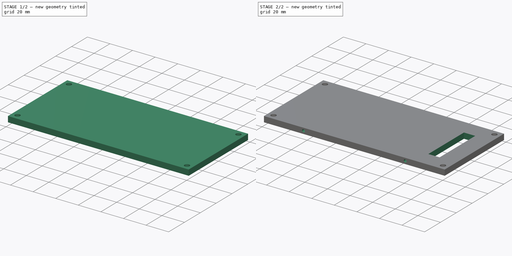
[diagram: build sequence overview — one tinted view per stage of 2, left to right]
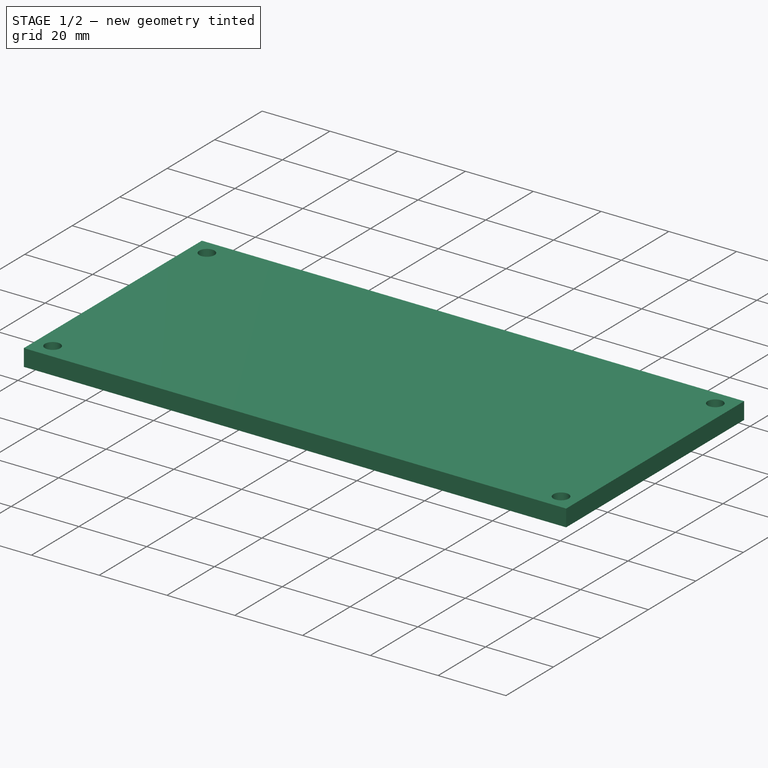
[diagram: stage 1 of 2 — iso view after this stage's code; geometry added in this stage tinted green]
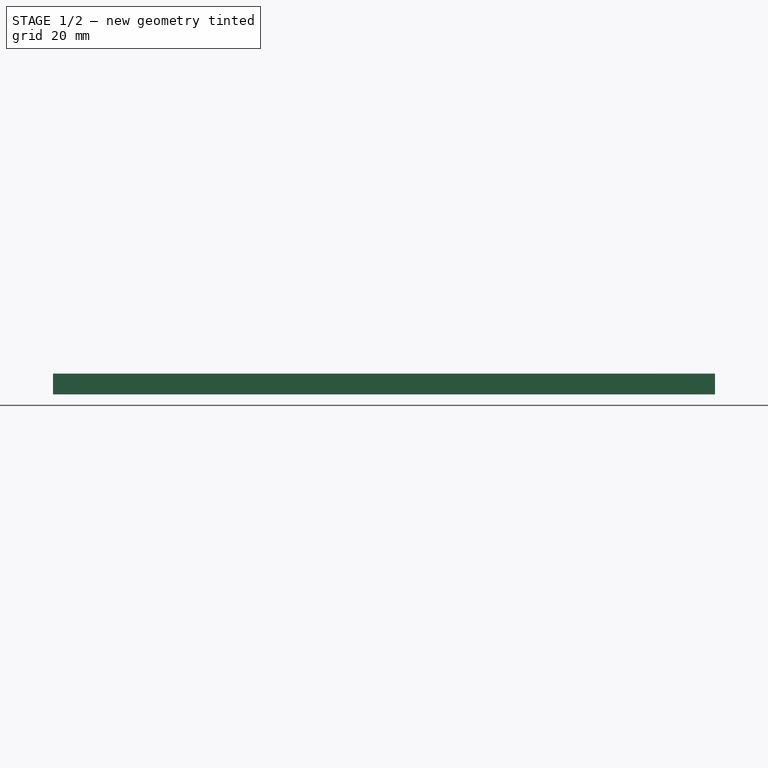
[diagram: stage 1 of 2 — front view after this stage's code; geometry added in this stage tinted green]
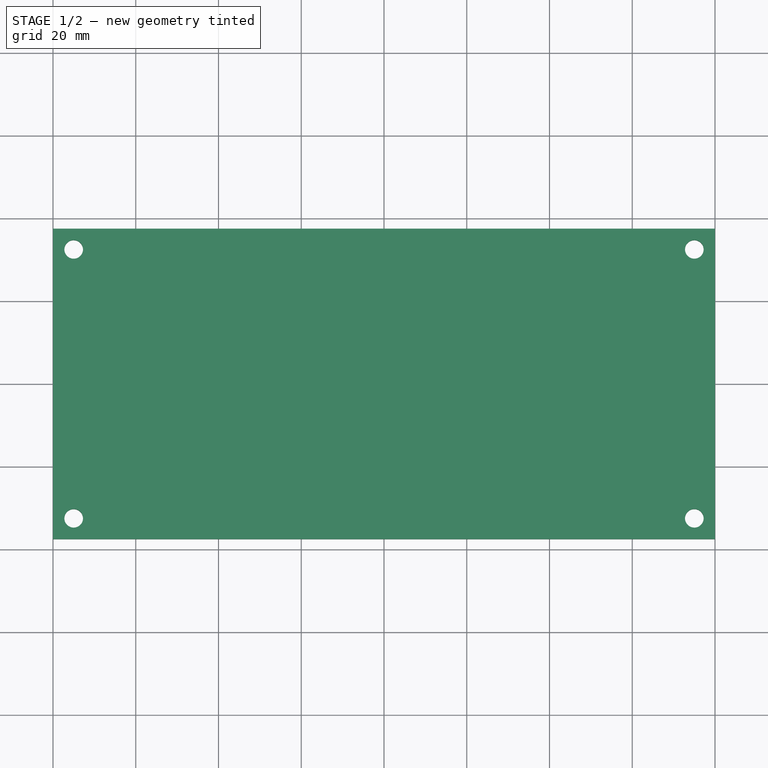
[diagram: stage 1 of 2 — top view after this stage's code; geometry added in this stage tinted green]
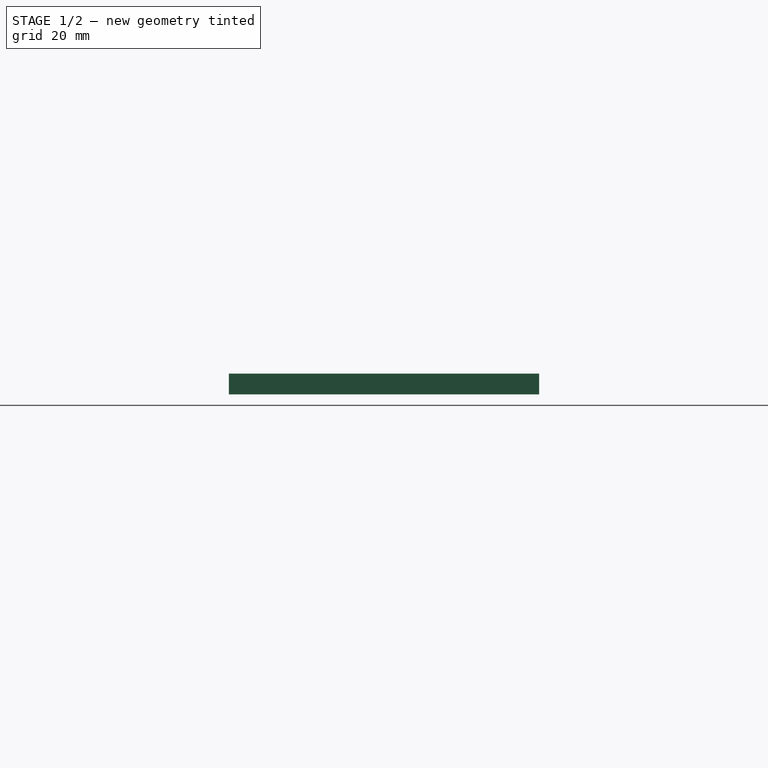
[diagram: stage 1 of 2 — right view after this stage's code; geometry added in this stage tinted green]
FCSTD DOCUMENT  (FreeCAD 0.19R24291 (Git))
Label: middle
License: All rights reserved
LicenseURL: http://en.wikipedia.org/wiki/All_rights_reserved
objects: Sketcher::SketchObject×4, PartDesign::Hole×2, PartDesign::Pad×1, PartDesign::Pocket×1, PartDesign::Body×1
note: 13 computed .brp shape members not serialized (recipe doc carries the construction recipe); baked Part::Feature solids carry a one-line shape summary decoded from their .brp

FEATURE [Sketcher::SketchObject] Sketch
  FullyConstrained = true
  MapMode = 5
  Support = -> [XY_Plane]
  sketch-geometry (4):
    g0: LineSegment StartX=-80 StartY=37.5 StartZ=0 EndX=80 EndY=37.5 EndZ=0
    g1: LineSegment StartX=80 StartY=37.5 StartZ=0 EndX=80 EndY=-37.5 EndZ=0
    g2: LineSegment StartX=80 StartY=-37.5 StartZ=0 EndX=-80 EndY=-37.5 EndZ=0
    g3: LineSegment StartX=-80 StartY=-37.5 StartZ=0 EndX=-80 EndY=37.5 EndZ=0
  constraints (10):
    c: Coincident(g0,g1)
    c: Coincident(g1,g2)
    c: Coincident(g2,g3)
    c: Coincident(g3,g0)
    c: Horizontal(g2)
    c: Vertical(g3)
    c: Symmetric(g0,g0,g-2)
    c: Symmetric(g0,g1,g-1)
    c: DistanceX(g0,g0) = 160
    c: DistanceY(g1,g1) = 75
FEATURE [PartDesign::Pad] Pad
  Direction = (1,1,1)
  Length = 5
  Length2 = 100
  Profile = -> Sketch
  Type = 0
FEATURE [Sketcher::SketchObject] Sketch001
  FullyConstrained = false
  MapMode = 5
  Placement = pos=(0,0,0) rot=(1,0,0;3.14159rad)
  Support = -> [Pad]
  sketch-geometry (8):
    g0: LineSegment StartX=-75 StartY=32.5 StartZ=0 EndX=75 EndY=32.5 EndZ=0
    g1: LineSegment StartX=75 StartY=32.5 StartZ=0 EndX=75 EndY=-32.5 EndZ=0
    g2: LineSegment StartX=75 StartY=-32.5 StartZ=0 EndX=-75 EndY=-32.5 EndZ=0
    g3: LineSegment StartX=-75 StartY=-32.5 StartZ=0 EndX=-75 EndY=32.5 EndZ=0
    g4: Circle CenterX=-75 CenterY=32.5 CenterZ=0 NormalX=0 NormalY=0 NormalZ=1 AngleXU=0 Radius=3.59456
    g5: Circle CenterX=75 CenterY=32.5 CenterZ=0 NormalX=0 NormalY=0 NormalZ=1 AngleXU=0 Radius=3.59456
    g6: Circle CenterX=75 CenterY=-32.5 CenterZ=0 NormalX=0 NormalY=0 NormalZ=1 AngleXU=0 Radius=3.59456
    g7: Circle CenterX=-75 CenterY=-32.5 CenterZ=0 NormalX=0 NormalY=0 NormalZ=1 AngleXU=0 Radius=3.59456
  constraints (17):
    c: Coincident(g0,g1)
    c: Coincident(g1,g2)
    c: Coincident(g2,g3)
    c: Coincident(g3,g0)
    c: Horizontal(g2)
    c: Vertical(g3)
    c: Symmetric(g0,g0,g-2)
    c: Symmetric(g0,g1,g-1)
    c: DistanceX(g0,g0) = 150
    c: DistanceY(g1,g1) = 65
    c: Coincident(g4,g0)
    c: Coincident(g5,g0)
    c: Coincident(g6,g1)
    c: Coincident(g7,g2)
    c: Equal(g7,g6)
    c: Equal(g6,g5)
    c: Equal(g5,g4)
FEATURE [PartDesign::Hole] Hole
  BaseFeature = -> Pad
  Depth = 25
  DepthType = 1
  Diameter = 4.5
  DrillForDepth = false
  DrillPoint = 1
  DrillPointAngle = 118
  HoleCutCountersinkAngle = 90
  HoleCutCustomValues = false
  HoleCutDepth = 0
  HoleCutDiameter = 6.1
  HoleCutType = 0
  ModelActualThread = false
  Profile = -> Sketch001
  Tapered = false
  TaperedAngle = 90
  ThreadAngle = 60
  ThreadClass = 0
  ThreadCutOffInner = 0.0757772
  ThreadCutOffOuter = 0.151554
  ThreadDirection = 0
  ThreadFit = 0
  ThreadPitch = 0.7
  ThreadSize = 11
  ThreadType = 1
  Threaded = false
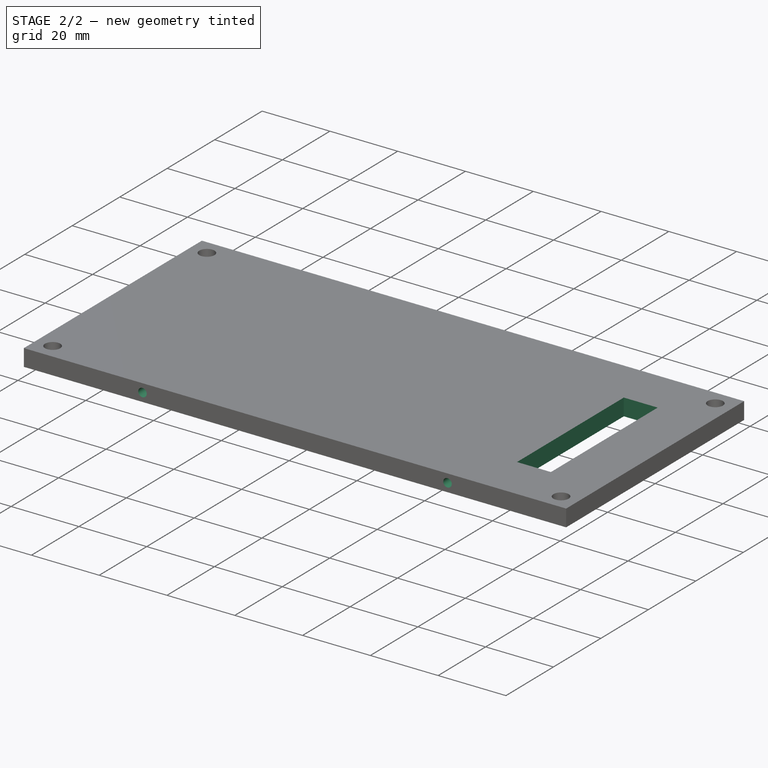
[diagram: stage 2 of 2 — iso view after this stage's code; geometry added in this stage tinted green]
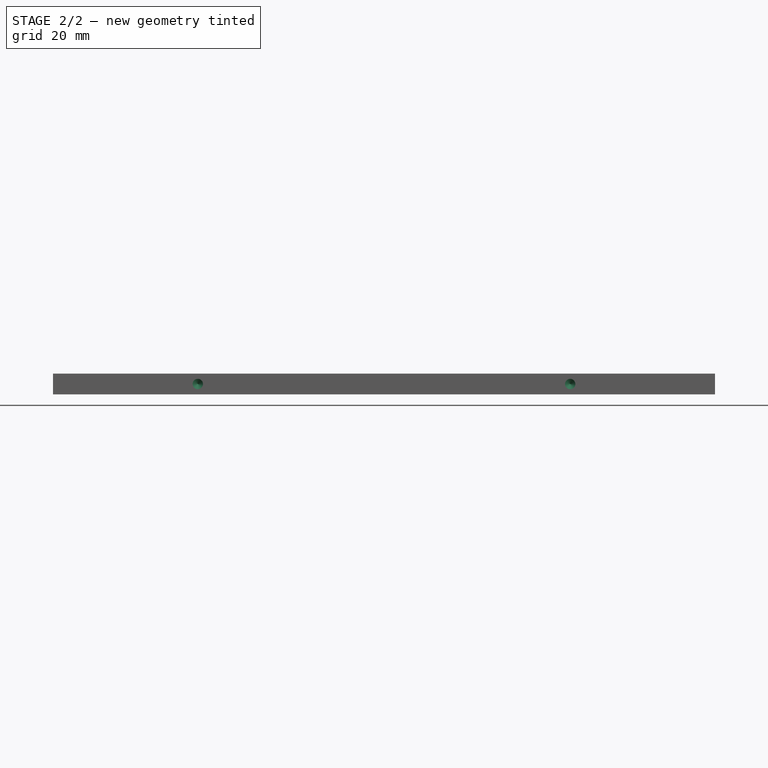
[diagram: stage 2 of 2 — front view after this stage's code; geometry added in this stage tinted green]
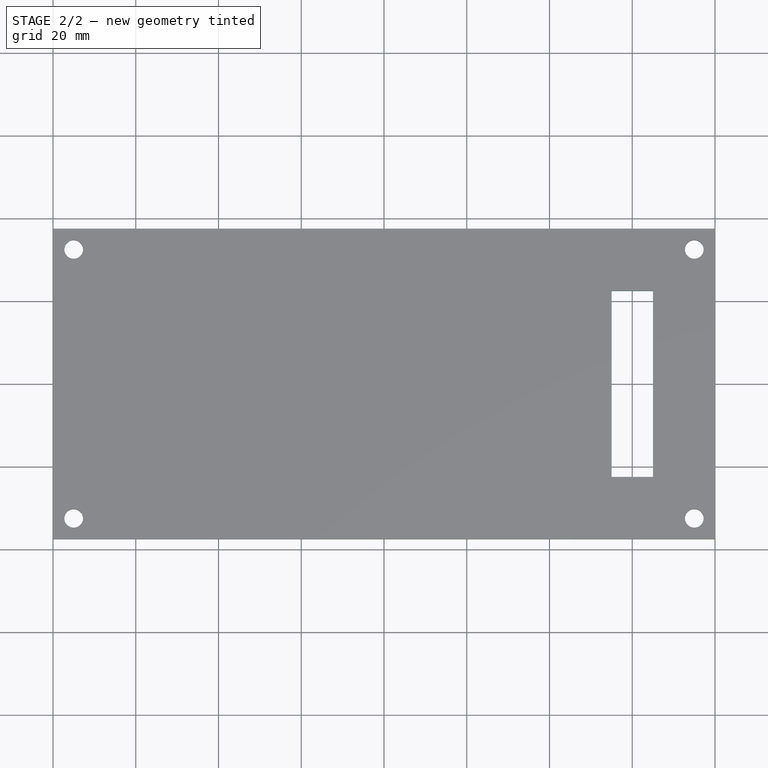
[diagram: stage 2 of 2 — top view after this stage's code; geometry added in this stage tinted green]
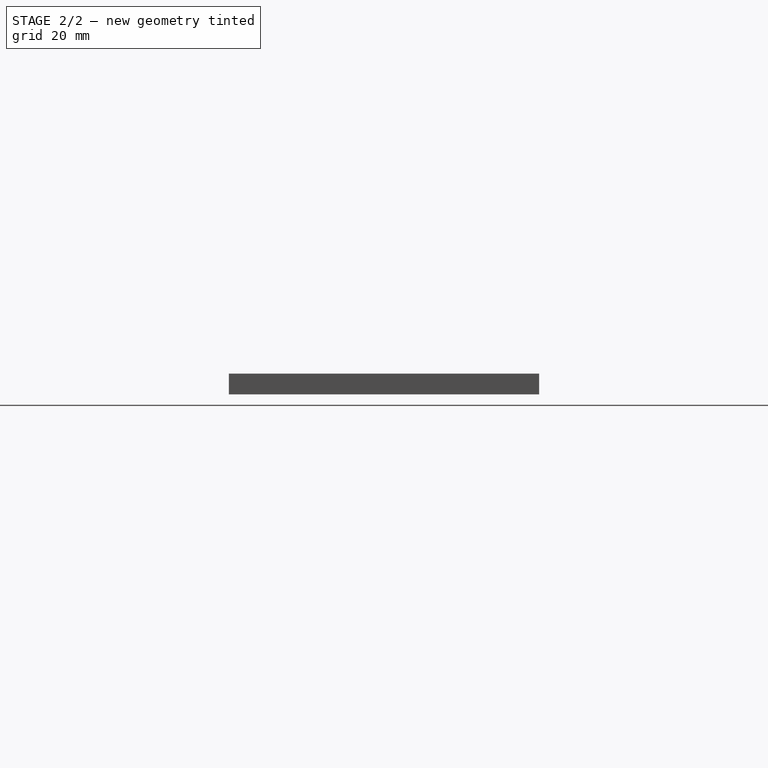
[diagram: stage 2 of 2 — right view after this stage's code; geometry added in this stage tinted green]
FEATURE [Sketcher::SketchObject] Sketch002
  FullyConstrained = false
  MapMode = 5
  Placement = pos=(0,-37.5,0) rot=(1,0,0;1.5708rad)
  Support = -> [Hole]
  sketch-geometry (3):
    g0: LineSegment StartX=-45 StartY=2.5 StartZ=0 EndX=45 EndY=2.5 EndZ=0
    g1: Circle CenterX=-45 CenterY=2.5 CenterZ=0 NormalX=0 NormalY=0 NormalZ=1 AngleXU=0 Radius=1.97312
    g2: Circle CenterX=45 CenterY=2.5 CenterZ=0 NormalX=0 NormalY=0 NormalZ=1 AngleXU=0 Radius=1.97312
  constraints (6):
    c: Symmetric(g0,g0,g-2)
    c: DistanceX(g0,g0) = 90
    c: DistanceY(g-1,g0) = 2.5
    c: Coincident(g1,g0)
    c: Coincident(g2,g0)
    c: Equal(g1,g2)
FEATURE [PartDesign::Hole] Hole001
  BaseFeature = -> Hole
  Depth = 25
  DepthType = 0
  Diameter = 2.5
  DrillForDepth = false
  DrillPoint = 1
  DrillPointAngle = 118
  HoleCutCountersinkAngle = 90
  HoleCutCustomValues = false
  HoleCutDepth = 0
  HoleCutDiameter = 6.1
  HoleCutType = 0
  ModelActualThread = false
  Profile = -> Sketch002
  Tapered = false
  TaperedAngle = 90
  ThreadAngle = 60
  ThreadClass = 0
  ThreadCutOffInner = 0.0541266
  ThreadCutOffOuter = 0.108253
  ThreadDirection = 0
  ThreadFit = 0
  ThreadPitch = 0.5
  ThreadSize = 9
  ThreadType = 1
  Threaded = true
FEATURE [Sketcher::SketchObject] Sketch003
  FullyConstrained = true
  MapMode = 5
  Placement = pos=(0,0,0) rot=(1,0,0;3.14159rad)
  Support = -> [Hole001]
  sketch-geometry (4):
    g0: LineSegment StartX=55 StartY=22.5 StartZ=0 EndX=65 EndY=22.5 EndZ=0
    g1: LineSegment StartX=65 StartY=22.5 StartZ=0 EndX=65 EndY=-22.5 EndZ=0
    g2: LineSegment StartX=65 StartY=-22.5 StartZ=0 EndX=55 EndY=-22.5 EndZ=0
    g3: LineSegment StartX=55 StartY=-22.5 StartZ=0 EndX=55 EndY=22.5 EndZ=0
  constraints (11):
    c: Coincident(g0,g1)
    c: Coincident(g1,g2)
    c: Coincident(g2,g3)
    c: Coincident(g3,g0)
    c: Horizontal(g0)
    c: Horizontal(g2)
    c: Vertical(g3)
    c: Symmetric(g0,g1,g-1)
    c: DistanceX(g0,g0) = 10
    c: DistanceX(g-1,g2) = 55
    c: DistanceY(g1,g1) = 45
FEATURE [PartDesign::Pocket] Pocket
  BaseFeature = -> Hole001
  Length = 5
  Length2 = 100
  Profile = -> Sketch003
  Type = 2
FEATURE [PartDesign::Body] Body
  Group = -> [Sketch,Pad,Sketch001,Hole,Sketch002,Hole001,Sketch003,Pocket]
  Origin = -> Origin
  Tip = -> Pocket
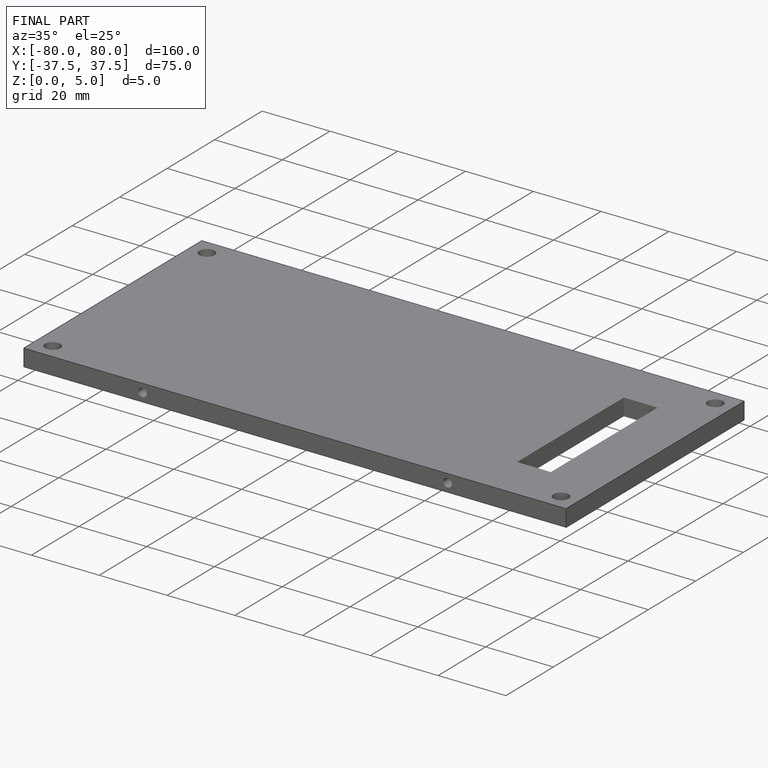
[diagram: finished part — iso view with bounding-box wireframe]
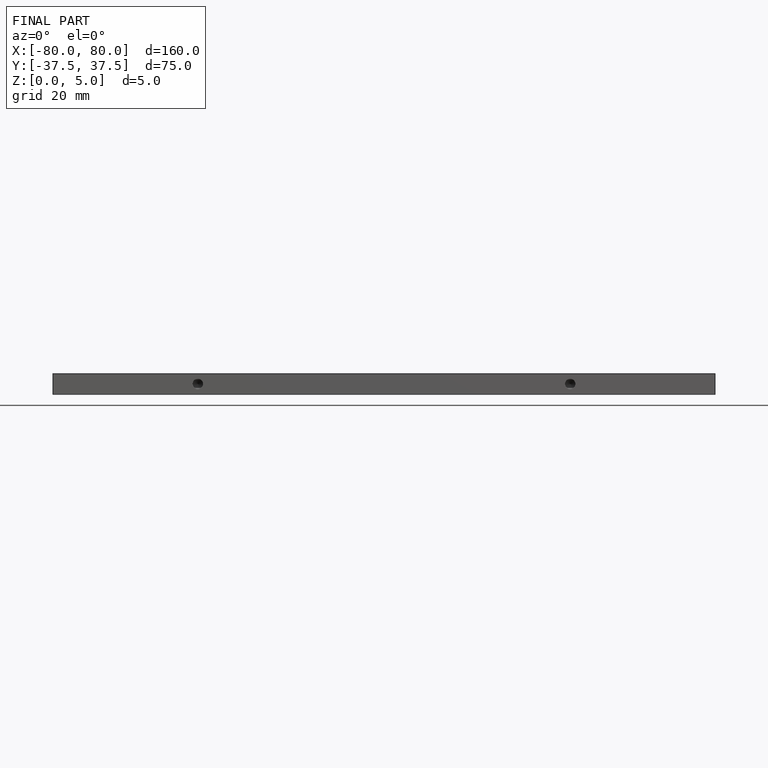
[diagram: finished part — front view with bounding-box wireframe]
